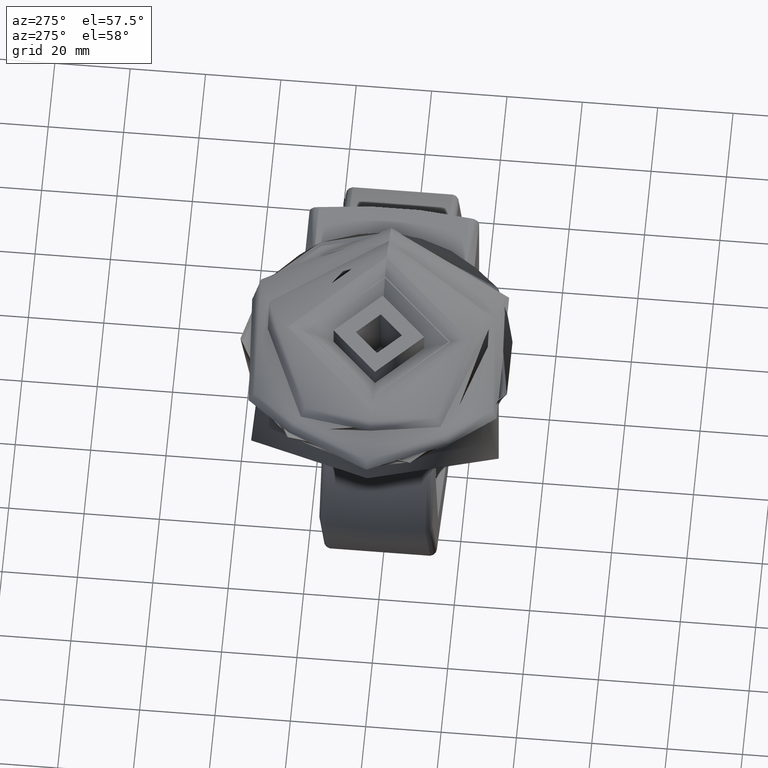
[diagram: clean part render]
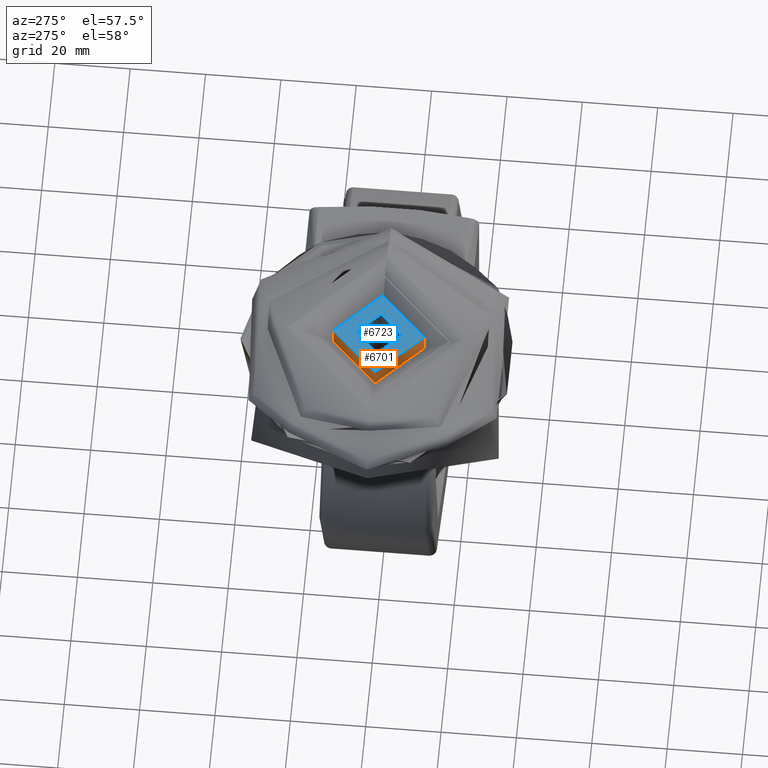
[diagram: same view with the hole feature highlighted: cylindrical wall and planar end face, labeled with their STEP entity ids]
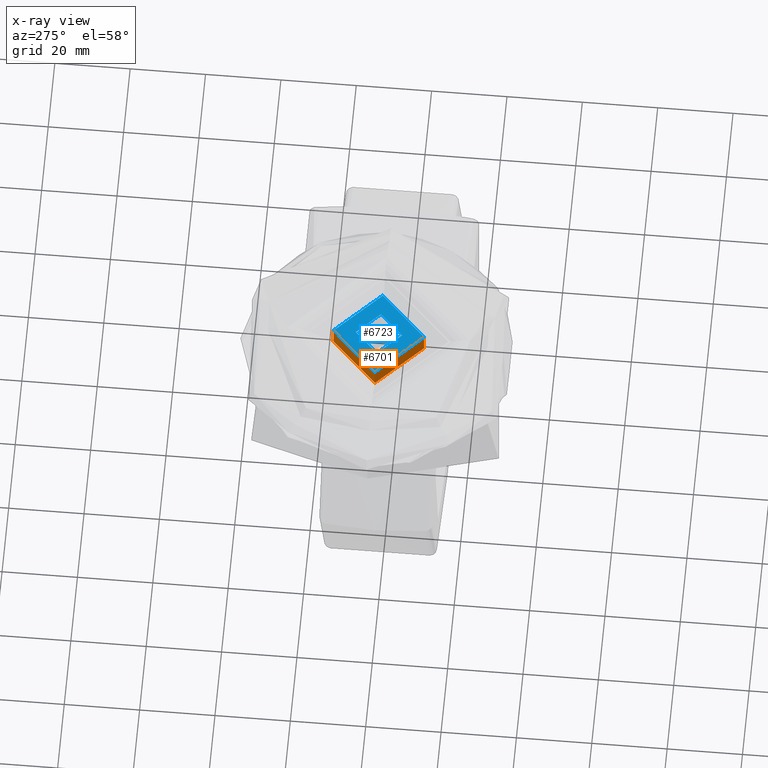
[diagram: x-ray of the same camera — body ghosted, the hole faces saturated]
A machine part, auxiliary view. The highlighted faces form one hole feature of diameter 24 mm: the cylindrical wall (entity #6701, orange) and its adjacent planar end face (entity #6723, blue) — they share a circular edge in the B-rep.
The next image is the same camera in x-ray (body ghosted, the hole faces saturated) — the bore reads through the body.
Wall:
#685=FACE_OUTER_BOUND('',#1103,.T.);
#1103=EDGE_LOOP('',(#4575,#4576,#4577,#4578));
#1567=LINE('',#10148,#2041);
#2041=VECTOR('',#8126,12.);
#2541=CIRCLE('',#7287,12.);
#2542=CIRCLE('',#7288,12.);
#2891=VERTEX_POINT('',#10145);
#2892=VERTEX_POINT('',#10147);
#3535=EDGE_CURVE('',#2891,#2891,#2541,.T.);
#3536=EDGE_CURVE('',#2891,#2892,#1567,.T.);
#3537=EDGE_CURVE('',#2892,#2892,#2542,.T.);
#4575=ORIENTED_EDGE('',*,*,#3535,.T.);
#4576=ORIENTED_EDGE('',*,*,#3536,.T.);
#4577=ORIENTED_EDGE('',*,*,#3537,.T.);
#4578=ORIENTED_EDGE('',*,*,#3536,.F.);
#6542=CYLINDRICAL_SURFACE('',#7286,12.);
#6701=ADVANCED_FACE('',(#685),#6542,.T.);
#7286=AXIS2_PLACEMENT_3D('',#10144,#8122,#8123);
#7287=AXIS2_PLACEMENT_3D('',#10146,#8124,#8125);
#7288=AXIS2_PLACEMENT_3D('',#10149,#8127,#8128);
#8122=DIRECTION('center_axis',(0.,0.,-1.));
#8123=DIRECTION('ref_axis',(-1.,0.,0.));
#8124=DIRECTION('center_axis',(0.,0.,1.));
#8125=DIRECTION('ref_axis',(1.,0.,0.));
#8126=DIRECTION('',(0.,0.,1.));
#8127=DIRECTION('center_axis',(0.,0.,-1.));
#8128=DIRECTION('ref_axis',(1.,0.,0.));
#10144=CARTESIAN_POINT('Origin',(0.,0.,6.75));
#10145=CARTESIAN_POINT('',(12.,-1.46957615897682E-15,4.));
#10146=CARTESIAN_POINT('Origin',(0.,0.,4.));
#10147=CARTESIAN_POINT('',(12.,-1.46957615897682E-15,9.5));
#10148=CARTESIAN_POINT('',(12.,-1.46957615897682E-15,6.75));
#10149=CARTESIAN_POINT('Origin',(0.,0.,9.5));
End face:
#422=FACE_BOUND('',#1132,.T.);
#475=PLANE('',#7341);
#707=FACE_OUTER_BOUND('',#1131,.T.);
#1131=EDGE_LOOP('',(#4660));
#1132=EDGE_LOOP('',(#4661));
#2539=CIRCLE('',#7284,6.1);
#2542=CIRCLE('',#7288,12.);
#2889=VERTEX_POINT('',#10139);
#2892=VERTEX_POINT('',#10147);
#3532=EDGE_CURVE('',#2889,#2889,#2539,.T.);
#3537=EDGE_CURVE('',#2892,#2892,#2542,.T.);
#4660=ORIENTED_EDGE('',*,*,#3537,.F.);
#4661=ORIENTED_EDGE('',*,*,#3532,.F.);
#6723=ADVANCED_FACE('',(#707,#422),#475,.T.);
#7284=AXIS2_PLACEMENT_3D('',#10140,#8117,#8118);
#7288=AXIS2_PLACEMENT_3D('',#10149,#8127,#8128);
#7341=AXIS2_PLACEMENT_3D('',#10234,#8241,#8242);
#8117=DIRECTION('center_axis',(0.,0.,1.));
#8118=DIRECTION('ref_axis',(1.,0.,0.));
#8127=DIRECTION('center_axis',(0.,0.,-1.));
#8128=DIRECTION('ref_axis',(1.,0.,0.));
#8241=DIRECTION('center_axis',(0.,0.,1.));
#8242=DIRECTION('ref_axis',(1.,0.,0.));
#10139=CARTESIAN_POINT('',(6.1,-7.47034547479885E-16,9.5));
#10140=CARTESIAN_POINT('Origin',(0.,0.,9.5));
#10147=CARTESIAN_POINT('',(12.,-1.46957615897682E-15,9.5));
#10149=CARTESIAN_POINT('Origin',(0.,0.,9.5));
#10234=CARTESIAN_POINT('Origin',(0.,0.,9.5));